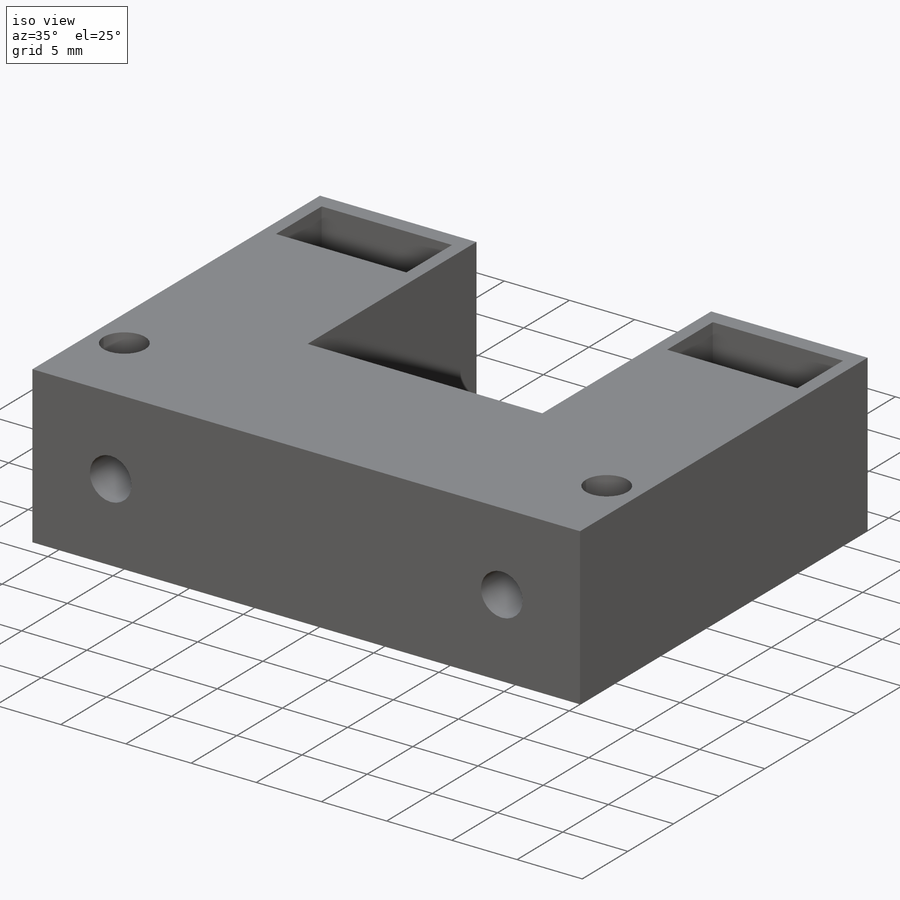
[diagram: iso view]
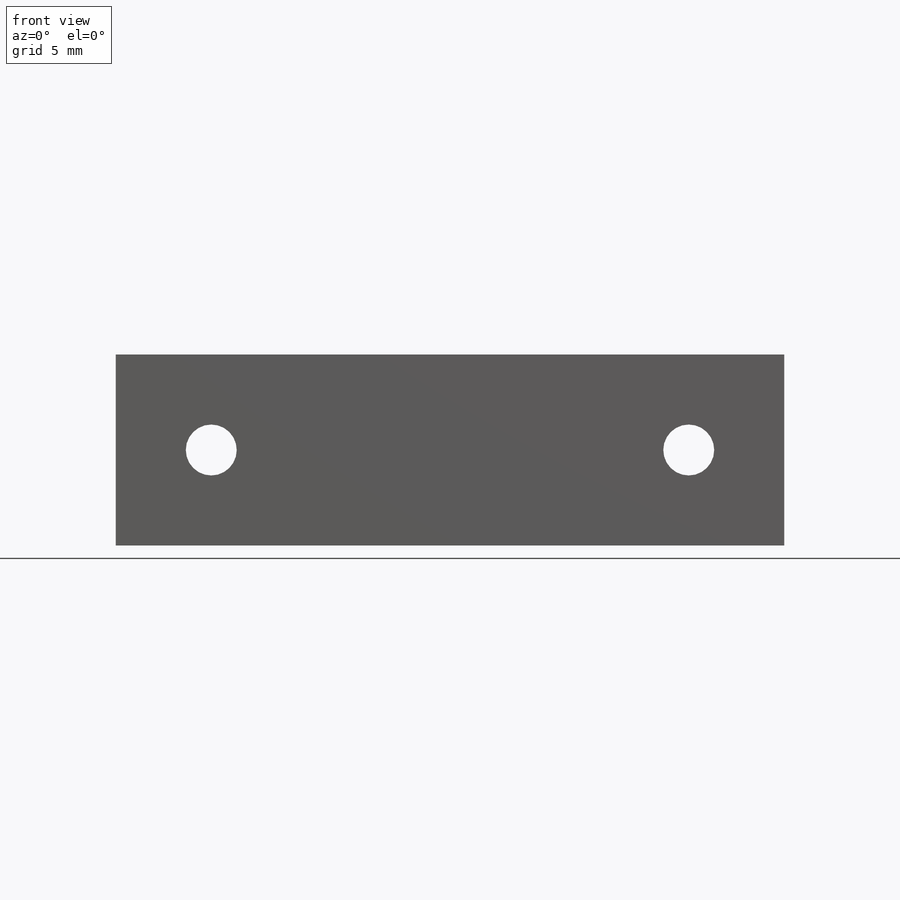
[diagram: front view]
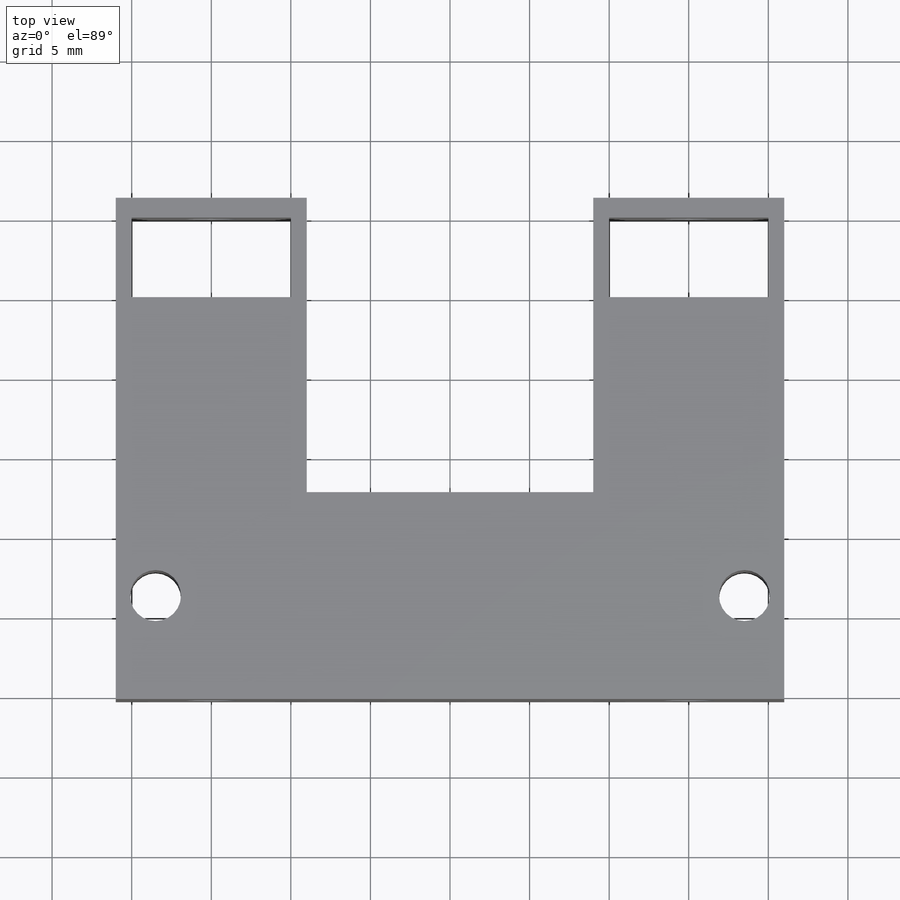
[diagram: top view]
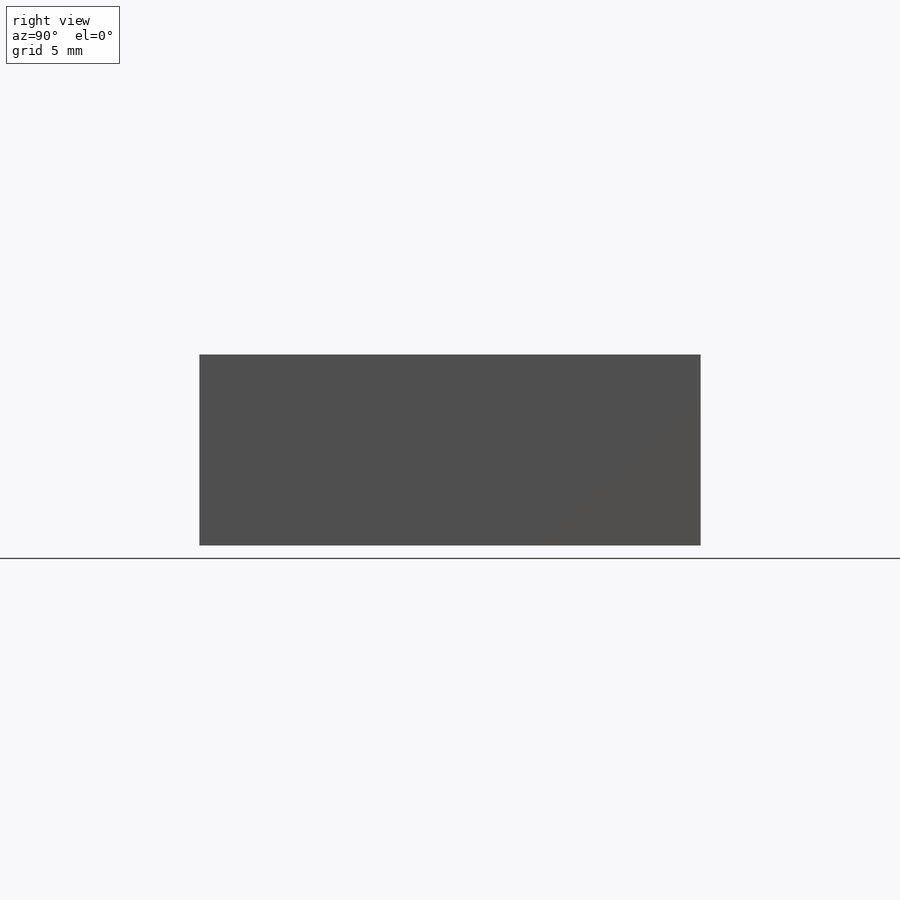
[diagram: right view]
SOLIDWORKS PART (.sldprt)
format: sldprt  version: not decoded by parser v0  size: 341,504 bytes
history: native  units: mm
features: sketch x16, extrude x6, cut_extrude x5, plane x3, material x1 (+10 scaffold rows collapsed)
feature tree (41):
  scaffold x10  (default folders/planes/origin — collapsed)
  material  "Material <sin especificar>"
  plane  "Alzado"
  plane  "Planta"
  plane  "Vista lateral"
  sketch  "Croquis2"  dims[D1=12.0mm D2=12.0mm D3=10.0mm D4=10.0mm]
  extrude  "Saliente-Extruir1"  Depth=5mm
  sketch  "Croquis3"
  extrude  "Saliente-Extruir2"  Depth=1.25mm
  sketch  "Croquis4"
  extrude  "Saliente-Extruir3"  Depth=1.25mm
  sketch  "Croquis5"  dims[D1=1.7mm]
  cut_extrude  "Cortar-Extruir1"  Depth=1.25mm
  sketch  "Croquis7"
  sketch  "Croquis9"
  cut_extrude  "Cortar-Extruir2"  Depth=1.25mm
  sketch  "Croquis11"
  extrude  "Saliente-Extruir4"  Depth=24mm
  sketch  "Croquis12"  dims[D1=31.5mm]
  sketch  "Croquis13"  dims[D1=13.0mm]
  extrude  "Saliente-Extruir6"  Depth=30mm
  sketch  "Croquis14"  dims[D1=12.0mm D2=12.0mm]
  extrude  "Saliente-Extruir8"  Depth=18.5mm
  sketch  "Croquis15"
  cut_extrude  "Cortar-Extruir3"  Depth=12mm
  sketch  "Croquis16"
  cut_extrude  "Cortar-Extruir5"  Depth=32mm
  sketch  "Croquis17"  dims[c1.D3=~4.029189mm c1.D1=13.0mm c1.D2=6.5mm c2.D3=37.0mm c2.D4=42.0mm]
  cut_extrude  "Cortar-Extruir6"  Depth=12mm
  sketch  "Croquis18"
  sketch  "Croquis20"  dims[D1=37.0mm]
  sketch  "Croquis21"  dims[D1=30.0mm D2=12.0mm]
decode coverage: 19 of 27 modeling features carry decoded parameters
note: ~ marks probable driven/reference dimensions
note: suppression state not decoded; provenance and decode notes live in map.json
